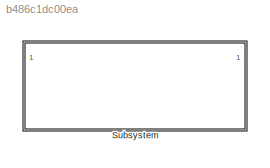
MODEL slx_b486c1dc00ea
KIND model
CONFIG AbsTol = auto
CONFIG EnableMultiTasking = off
CONFIG FixedStep = auto
CONFIG MaxStep = auto
CONFIG MinStep = auto
CONFIG RelTol = 1e-3
CONFIG SampleTimeConstraint = Unconstrained
CONFIG SolverName = VariableStepAuto
CONFIG StartTime = 0.0
CONFIG StopTime = 10.0
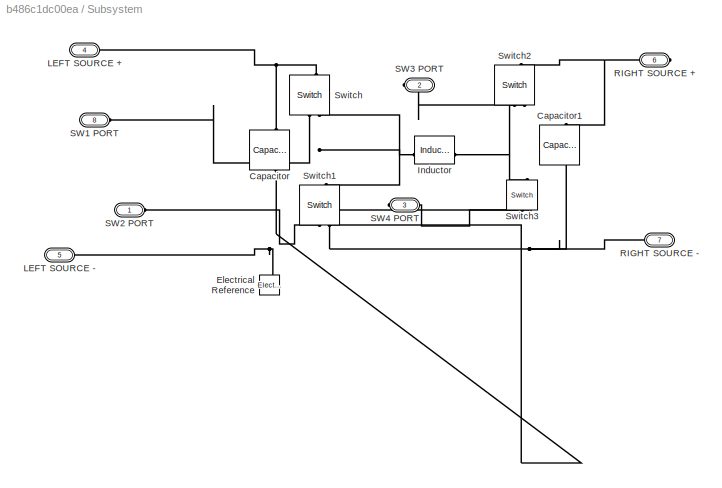
BLOCK [SubSystem] Subsystem
BLOCK [Reference] Subsystem/Capacitor  REF=fl_lib/Electrical/Electrical Elements/Capacitor
  NameLocation = left
  SourceBlock = fl_lib/Electrical/Electrical Elements/Capacitor
  SourceType = Capacitor
BLOCK [Reference] Subsystem/Capacitor1  REF=fl_lib/Electrical/Electrical Elements/Capacitor
  NameLocation = left
  SourceBlock = fl_lib/Electrical/Electrical Elements/Capacitor
  SourceType = Capacitor
BLOCK [Reference] Subsystem/Electrical Reference  REF=fl_lib/Electrical/Electrical Elements/Electrical Reference
  LibrarySourceBlock = ee_lib/Connectors &\nReferences/Electrical Reference
  NameLocation = right
  SourceBlock = fl_lib/Electrical/Electrical Elements/Electrical Reference
  SourceType = Electrical Reference
BLOCK [Reference] Subsystem/Inductor  REF=fl_lib/Electrical/Electrical Elements/Inductor
  SourceBlock = fl_lib/Electrical/Electrical Elements/Inductor
  SourceType = Inductor
BLOCK [PMIOPort] Subsystem/LEFT SOURCE +
  Port = 4
  Side = Left
BLOCK [PMIOPort] Subsystem/LEFT SOURCE -
  Port = 5
  Side = Left
BLOCK [PMIOPort] Subsystem/RIGHT SOURCE +
  NameLocation = top
  Port = 6
  Side = Right
BLOCK [PMIOPort] Subsystem/RIGHT SOURCE -
  NameLocation = top
  Port = 7
  Side = Right
BLOCK [PMIOPort] Subsystem/SW1 PORT
  Port = 8
  Side = Left
BLOCK [PMIOPort] Subsystem/SW2 PORT
  Side = Left
BLOCK [PMIOPort] Subsystem/SW3 PORT
  Port = 2
  Side = Right
BLOCK [PMIOPort] Subsystem/SW4 PORT
  Port = 3
  Side = Right
BLOCK [Reference] Subsystem/Switch  REF=fl_lib/Electrical/Electrical Elements/Switch
  NameLocation = right
  SourceBlock = fl_lib/Electrical/Electrical Elements/Switch
  SourceType = Switch
BLOCK [Reference] Subsystem/Switch1  REF=fl_lib/Electrical/Electrical Elements/Switch
  NameLocation = right
  SourceBlock = fl_lib/Electrical/Electrical Elements/Switch
  SourceType = Switch
BLOCK [Reference] Subsystem/Switch2  REF=fl_lib/Electrical/Electrical Elements/Switch
  NameLocation = right
  SourceBlock = fl_lib/Electrical/Electrical Elements/Switch
  SourceType = Switch
BLOCK [Reference] Subsystem/Switch3  REF=fl_lib/Electrical/Electrical Elements/Switch
  NameLocation = right
  SourceBlock = fl_lib/Electrical/Electrical Elements/Switch
  SourceType = Switch
PNET net1: Subsystem/Capacitor1:LConn1 -- Subsystem/RIGHT SOURCE +:RConn1 -- Subsystem/Switch2:LConn1
PNET net2: Subsystem/Capacitor1:RConn1 -- Subsystem/Capacitor:RConn1 -- Subsystem/Electrical Reference:LConn1 -- Subsystem/LEFT SOURCE -:RConn1 -- Subsystem/RIGHT SOURCE -:RConn1 -- Subsystem/Switch1:RConn2 -- Subsystem/Switch3:RConn2
PNET net3: Subsystem/Capacitor:LConn1 -- Subsystem/LEFT SOURCE +:RConn1 -- Subsystem/Switch:LConn1
PNET net4: Subsystem/Inductor:LConn1 -- Subsystem/Switch1:LConn1 -- Subsystem/Switch:RConn2
PNET net5: Subsystem/Inductor:RConn1 -- Subsystem/Switch2:RConn2 -- Subsystem/Switch3:LConn1
PLINE Subsystem/SW1 PORT:RConn1 -- Subsystem/Switch:RConn1
PLINE Subsystem/SW2 PORT:RConn1 -- Subsystem/Switch1:RConn1
PLINE Subsystem/SW3 PORT:RConn1 -- Subsystem/Switch2:RConn1
PLINE Subsystem/SW4 PORT:RConn1 -- Subsystem/Switch3:RConn1
note: PNET lines group multi-terminal physical nets as a canonical sorted terminal list (undirected conserving connections); 2-terminal nets keep the pairwise PLINE form
